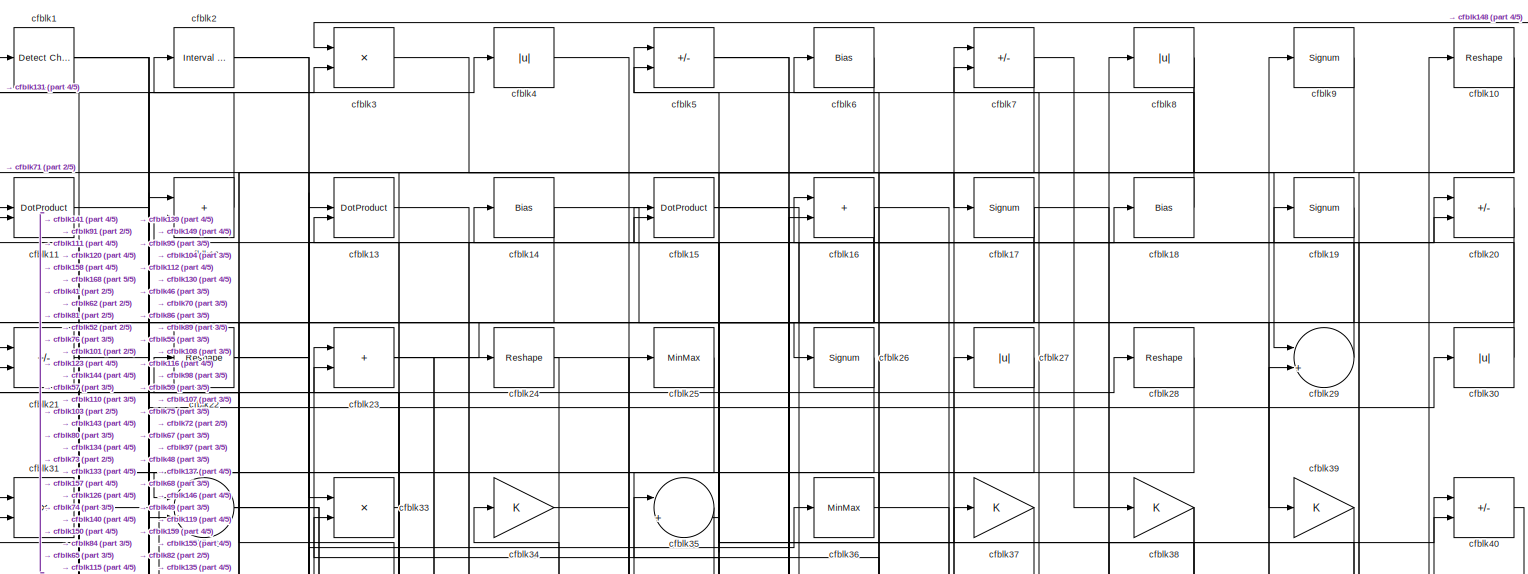
[diagram: root canvas - part 1/5, full width, top band]
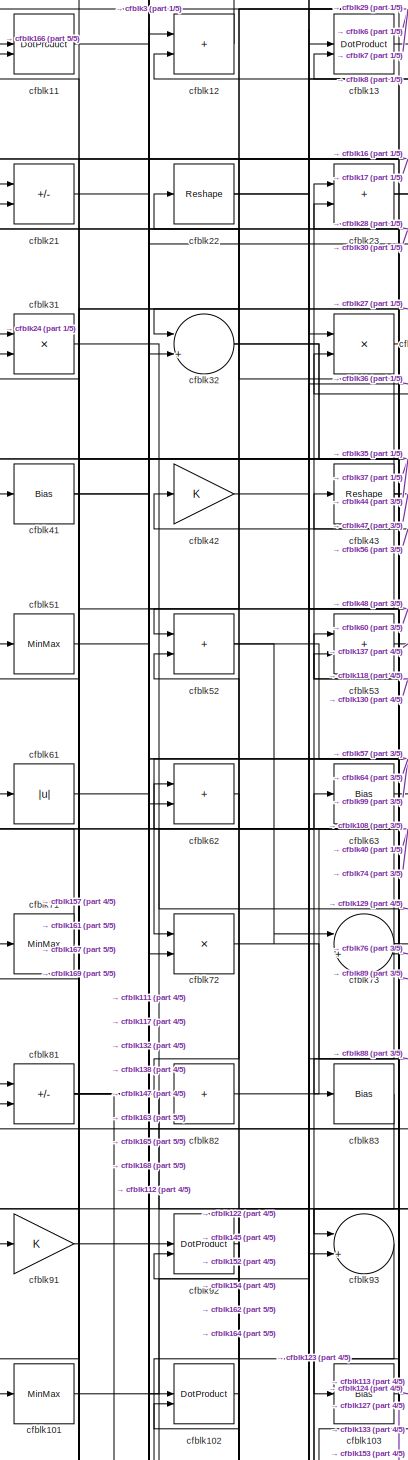
[diagram: root canvas - part 2/5, middle left region]
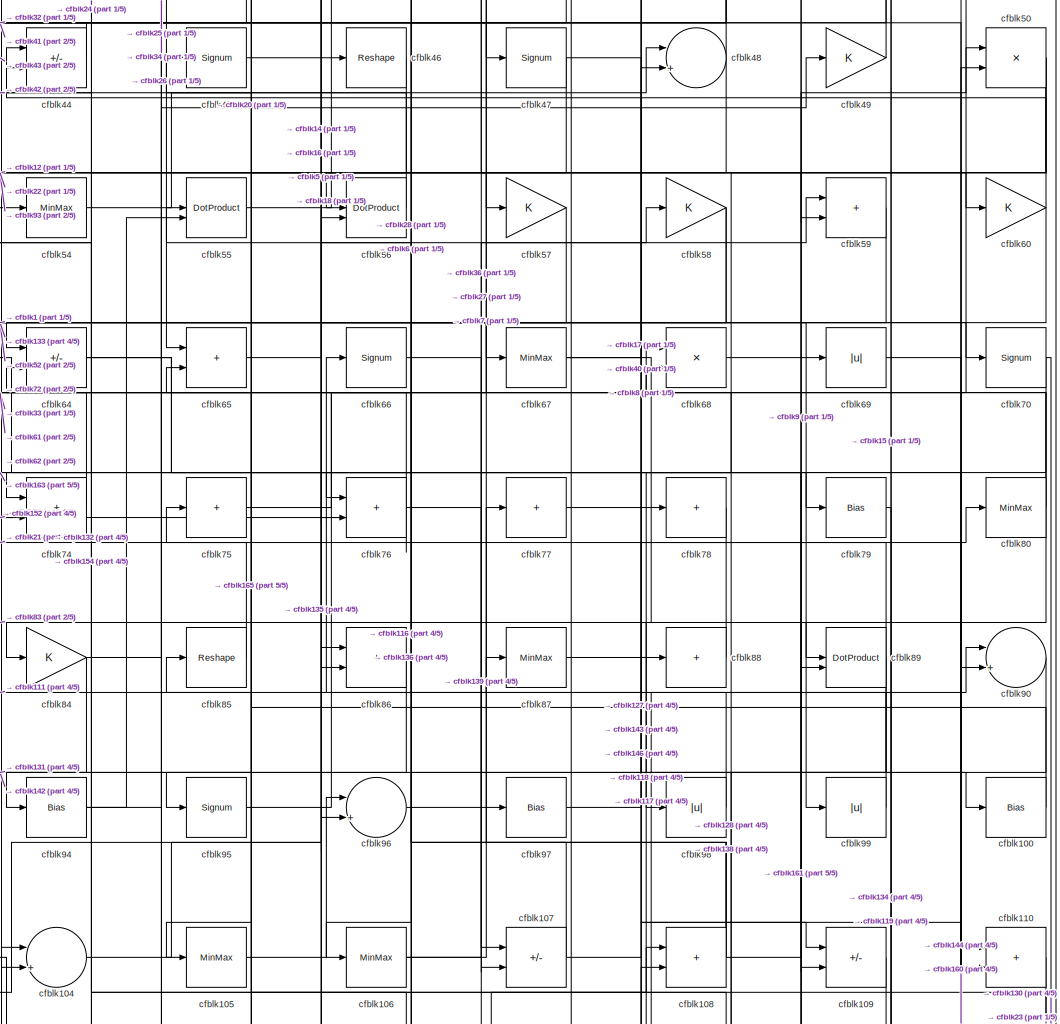
[diagram: root canvas - part 3/5, central region]
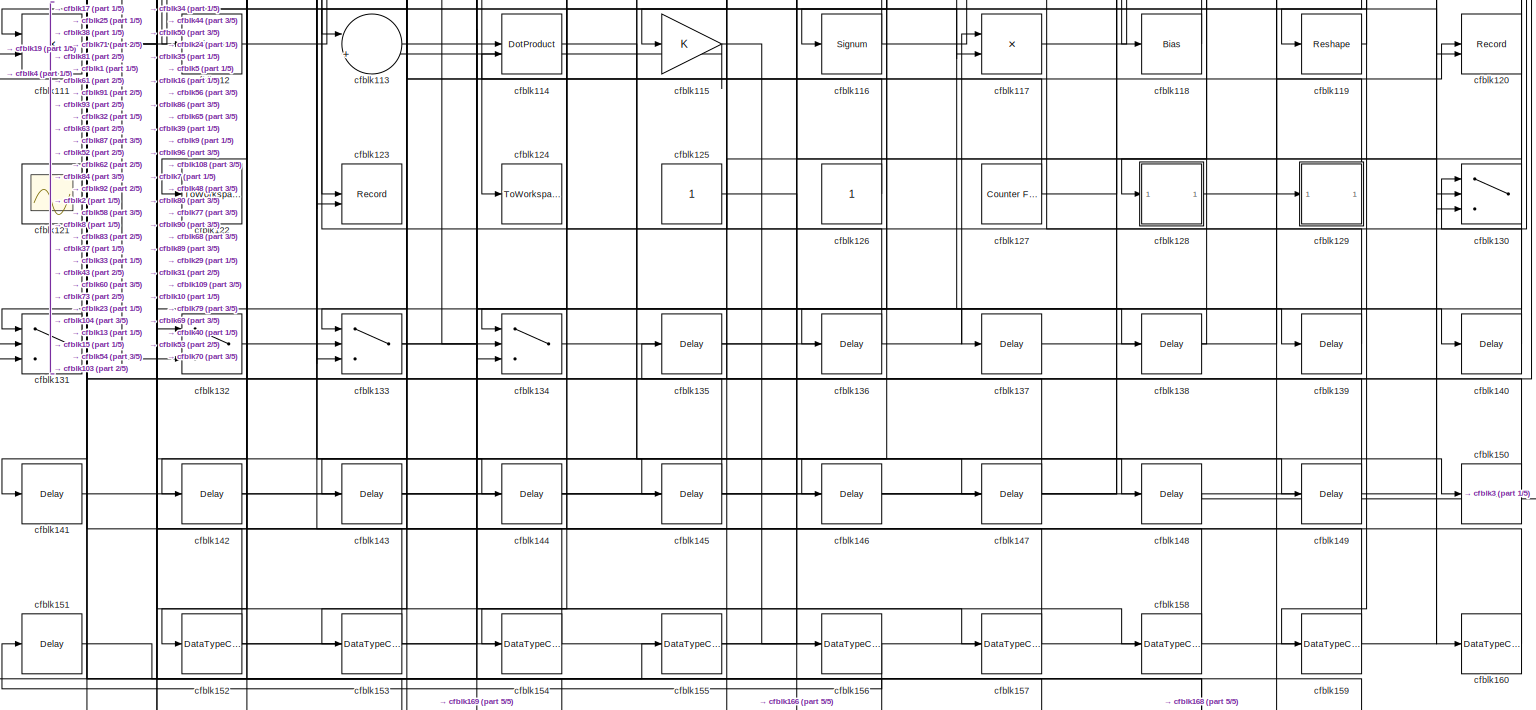
[diagram: root canvas - part 4/5, full width, bottom band]
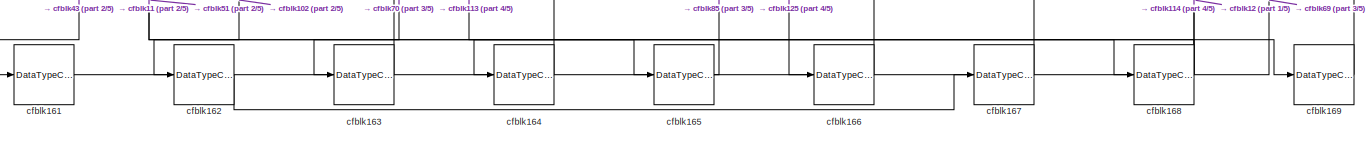
[diagram: root canvas - part 5/5, full width, bottom band]
MODEL slx_35095c413381
KIND model
CONFIG AbsTol = auto
CONFIG EnableMultiTasking = off
CONFIG FixedStep = auto
CONFIG MaxStep = auto
CONFIG MinStep = auto
CONFIG RelTol = 1e-3
CONFIG SampleTimeConstraint = Unconstrained
CONFIG SolverName = VariableStepAuto
CONFIG StartTime = 0.0
CONFIG StopTime = 10.0
BLOCK [Reference] cfblk1  REF=simulink/Logic and Bit
Operations/Detect
Change
  LibrarySourceBlock = hdlsllib/Logic and Bit\nOperations/Detect\nChange
  SourceBlock = simulink/Logic and Bit\nOperations/Detect\nChange
  SourceType = Detect Change
BLOCK [Reshape] cfblk10
BLOCK [Bias] cfblk100
  Bias = 0.0
  SaturateOnIntegerOverflow = off
BLOCK [MinMax] cfblk101
BLOCK [DotProduct] cfblk102
  OutDataTypeStr = Inherit: Inherit via internal rule
BLOCK [Bias] cfblk103
  Bias = 0.0
  SaturateOnIntegerOverflow = off
BLOCK [Sum] cfblk104
  Inputs = |++
BLOCK [MinMax] cfblk105
BLOCK [MinMax] cfblk106
BLOCK [Sum] cfblk107
  IconShape = rectangular
  Inputs = +-
BLOCK [Sum] cfblk108
  IconShape = rectangular
BLOCK [Sum] cfblk109
  IconShape = rectangular
  Inputs = +-
BLOCK [DotProduct] cfblk11
  OutDataTypeStr = Inherit: Inherit via internal rule
BLOCK [Sum] cfblk110
  IconShape = rectangular
BLOCK [Product] cfblk111
  Inputs = */
  RndMeth = Zero
  SaturateOnIntegerOverflow = on
BLOCK [Signum] cfblk112
BLOCK [Sum] cfblk113
  Inputs = |++
BLOCK [DotProduct] cfblk114
  OutDataTypeStr = Inherit: Inherit via internal rule
BLOCK [Gain] cfblk115
BLOCK [Signum] cfblk116
BLOCK [Product] cfblk117
  Inputs = */
  RndMeth = Zero
  SaturateOnIntegerOverflow = on
BLOCK [Bias] cfblk118
  Bias = 0.0
  SaturateOnIntegerOverflow = off
BLOCK [Reshape] cfblk119
BLOCK [Sum] cfblk12
  IconShape = rectangular
BLOCK [Record] cfblk120
  CompatibilityTag = XY
  FileSettingsInternal = {"entries":[{"content":{"excelSettings":{"content":{},"type":"Streamout.ExcelSettings"}},"type":"Streamout.FileSettingStorage","uuid":""}],"packageUris":["http:\/\/schema.mathworks.com\/mf0\/streamout_blocks\/R2020a"],"version":"1.0"}
  Layout = [1 1]
  SignalsInternal = {"entries":[{"content":{},"type":"RecordBlkView.InputSignals","uuid":""}],"packageUris":["http:\/\/schema.mathworks.com\/mf0\/streamout_blocks\/R2020a"],"version":"1.0"}
  VisualizationBindings = {"xyplotplugin":{"info":[{"series":[{"bindingParametersList":[{"parameter":"X-Axis","signalID":755,"signalName":"cfblk128"},{"parameter":"Y-Axis","signalID":760,"signalName":"cfblk1"}],"seriesID":12178}],"subplotID":1}]}}
  st = -1
BLOCK [Scope] cfblk121
  Floating = on
  NumInputPorts = 1
  ScopeSpecificationString = Simulink.scopes.TimeScopeBlockCfg('CurrentConfiguration', extmgr.ConfigurationSet(extmgr.Configuration('Core','General UI',true,'FigureColor',[0.156862745098039 0.156862745098039 0.156862745098039]),extmgr.Configuration('Core','Source UI',true),extmgr.Configuration('Sources','WiredSimulink',true,'DataLoggingVariableName','ScopeData1','DataLoggingSaveFormat','StructureWithTime','DataLoggingLimitDat...<+2713ch>
BLOCK [ToWorkspace] cfblk122
  MaxDataPoints = inf
  SampleTime = -1
  SaveFormat = Timeseries
  VariableName = simout
BLOCK [Record] cfblk123
  CompatibilityTag = XY
  FileSettingsInternal = {"entries":[{"content":{"excelSettings":{"content":{},"type":"Streamout.ExcelSettings"}},"type":"Streamout.FileSettingStorage","uuid":""}],"packageUris":["http:\/\/schema.mathworks.com\/mf0\/streamout_blocks\/R2020a"],"version":"1.0"}
  Layout = [1 1]
  SignalsInternal = {"entries":[{"content":{},"type":"RecordBlkView.InputSignals","uuid":""}],"packageUris":["http:\/\/schema.mathworks.com\/mf0\/streamout_blocks\/R2020a"],"version":"1.0"}
  VisualizationBindings = {"xyplotplugin":{"info":[{"series":[{"bindingParametersList":[{"parameter":"X-Axis","signalID":764,"signalName":"cfblk83"},{"parameter":"Y-Axis","signalID":768,"signalName":"cfblk8"}],"seriesID":30120}],"subplotID":1}]}}
  st = -1
BLOCK [ToWorkspace] cfblk124
  MaxDataPoints = inf
  SampleTime = -1
  SaveFormat = Timeseries
  VariableName = simout
BLOCK [Constant] cfblk125
  SampleTime = -1
BLOCK [Constant] cfblk126
  SampleTime = -1
BLOCK [Reference] cfblk127  REF=hdlsllib/Sources/Counter
Free-Running
  SourceBlock = hdlsllib/Sources/Counter\nFree-Running
  SourceType = Counter Free-Running
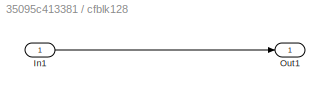
BLOCK [SubSystem] cfblk128
  LibrarySourceBlock = hdlsllib/Ports &\nSubsystems/Subsystem
BLOCK [Inport] cfblk128/In1
BLOCK [Outport] cfblk128/Out1
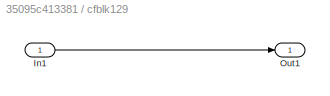
BLOCK [SubSystem] cfblk129
  LibrarySourceBlock = hdlsllib/Ports &\nSubsystems/Subsystem
BLOCK [Inport] cfblk129/In1
BLOCK [Outport] cfblk129/Out1
BLOCK [DotProduct] cfblk13
  OutDataTypeStr = Inherit: Inherit via internal rule
BLOCK [Switch] cfblk130
  InputSameDT = off
  SaturateOnIntegerOverflow = off
BLOCK [Switch] cfblk131
  InputSameDT = off
  SaturateOnIntegerOverflow = off
BLOCK [Switch] cfblk132
  InputSameDT = off
  SaturateOnIntegerOverflow = off
BLOCK [Switch] cfblk133
  InputSameDT = off
  SaturateOnIntegerOverflow = off
BLOCK [Switch] cfblk134
  InputSameDT = off
  SaturateOnIntegerOverflow = off
BLOCK [Delay] cfblk135
  InputPortMap = u0
  SampleTime = 1
BLOCK [Delay] cfblk136
  InputPortMap = u0
  SampleTime = 1
BLOCK [Delay] cfblk137
  InputPortMap = u0
  SampleTime = 1
BLOCK [Delay] cfblk138
  InputPortMap = u0
  SampleTime = 1
BLOCK [Delay] cfblk139
  InputPortMap = u0
  SampleTime = 1
BLOCK [Bias] cfblk14
  Bias = 0.0
  SaturateOnIntegerOverflow = off
BLOCK [Delay] cfblk140
  InputPortMap = u0
  SampleTime = 1
BLOCK [Delay] cfblk141
  InputPortMap = u0
  SampleTime = 1
BLOCK [Delay] cfblk142
  InputPortMap = u0
  SampleTime = 1
BLOCK [Delay] cfblk143
  InputPortMap = u0
  SampleTime = 1
BLOCK [Delay] cfblk144
  InputPortMap = u0
  SampleTime = 1
BLOCK [Delay] cfblk145
  InputPortMap = u0
  SampleTime = 1
BLOCK [Delay] cfblk146
  InputPortMap = u0
  SampleTime = 1
BLOCK [Delay] cfblk147
  InputPortMap = u0
  SampleTime = 1
BLOCK [Delay] cfblk148
  InputPortMap = u0
  SampleTime = 1
BLOCK [Delay] cfblk149
  InputPortMap = u0
  SampleTime = 1
BLOCK [DotProduct] cfblk15
  OutDataTypeStr = Inherit: Inherit via internal rule
BLOCK [Delay] cfblk150
  InputPortMap = u0
  SampleTime = 1
BLOCK [Delay] cfblk151
  InputPortMap = u0
  SampleTime = 1
BLOCK [DataTypeConversion] cfblk152
  RndMeth = Floor
  SaturateOnIntegerOverflow = off
BLOCK [DataTypeConversion] cfblk153
  OutDataTypeStr = uint8
  RndMeth = Floor
  SaturateOnIntegerOverflow = off
BLOCK [DataTypeConversion] cfblk154
  OutDataTypeStr = uint8
  RndMeth = Floor
  SaturateOnIntegerOverflow = off
BLOCK [DataTypeConversion] cfblk155
  OutDataTypeStr = uint8
  RndMeth = Floor
  SaturateOnIntegerOverflow = off
BLOCK [DataTypeConversion] cfblk156
  OutDataTypeStr = uint8
  RndMeth = Floor
  SaturateOnIntegerOverflow = off
BLOCK [DataTypeConversion] cfblk157
  OutDataTypeStr = uint8
  RndMeth = Floor
  SaturateOnIntegerOverflow = off
BLOCK [DataTypeConversion] cfblk158
  OutDataTypeStr = uint8
  RndMeth = Floor
  SaturateOnIntegerOverflow = off
BLOCK [DataTypeConversion] cfblk159
  OutDataTypeStr = uint8
  RndMeth = Floor
  SaturateOnIntegerOverflow = off
BLOCK [Sum] cfblk16
  IconShape = rectangular
BLOCK [DataTypeConversion] cfblk160
  OutDataTypeStr = uint8
  RndMeth = Floor
  SaturateOnIntegerOverflow = off
BLOCK [DataTypeConversion] cfblk161
  OutDataTypeStr = uint8
  RndMeth = Floor
  SaturateOnIntegerOverflow = off
BLOCK [DataTypeConversion] cfblk162
  OutDataTypeStr = uint8
  RndMeth = Floor
  SaturateOnIntegerOverflow = off
BLOCK [DataTypeConversion] cfblk163
  OutDataTypeStr = uint8
  RndMeth = Floor
  SaturateOnIntegerOverflow = off
BLOCK [DataTypeConversion] cfblk164
  OutDataTypeStr = uint8
  RndMeth = Floor
  SaturateOnIntegerOverflow = off
BLOCK [DataTypeConversion] cfblk165
  OutDataTypeStr = uint8
  RndMeth = Floor
  SaturateOnIntegerOverflow = off
BLOCK [DataTypeConversion] cfblk166
  OutDataTypeStr = uint8
  RndMeth = Floor
  SaturateOnIntegerOverflow = off
BLOCK [DataTypeConversion] cfblk167
  OutDataTypeStr = uint8
  RndMeth = Floor
  SaturateOnIntegerOverflow = off
BLOCK [DataTypeConversion] cfblk168
  RndMeth = Floor
  SaturateOnIntegerOverflow = off
BLOCK [DataTypeConversion] cfblk169
  OutDataTypeStr = uint8
  RndMeth = Floor
  SaturateOnIntegerOverflow = off
BLOCK [Signum] cfblk17
BLOCK [Bias] cfblk18
  Bias = 0.0
  SaturateOnIntegerOverflow = off
BLOCK [Signum] cfblk19
BLOCK [Reference] cfblk2  REF=hdlsllib/Logic and Bit
Operations/Interval Test
  SourceBlock = hdlsllib/Logic and Bit\nOperations/Interval Test
  SourceType = Interval Test
BLOCK [Sum] cfblk20
  IconShape = rectangular
  Inputs = +-
BLOCK [Sum] cfblk21
  IconShape = rectangular
  Inputs = +-
BLOCK [Reshape] cfblk22
BLOCK [Sum] cfblk23
  IconShape = rectangular
BLOCK [Reshape] cfblk24
BLOCK [MinMax] cfblk25
BLOCK [Signum] cfblk26
BLOCK [Abs] cfblk27
  SaturateOnIntegerOverflow = off
BLOCK [Reshape] cfblk28
BLOCK [Sum] cfblk29
  Inputs = |++
BLOCK [Product] cfblk3
  Inputs = */
  RndMeth = Zero
  SaturateOnIntegerOverflow = on
BLOCK [Abs] cfblk30
  SaturateOnIntegerOverflow = off
BLOCK [Product] cfblk31
  Inputs = */
  RndMeth = Zero
  SaturateOnIntegerOverflow = on
BLOCK [Sum] cfblk32
  Inputs = |++
BLOCK [Product] cfblk33
  Inputs = */
  RndMeth = Zero
  SaturateOnIntegerOverflow = on
BLOCK [Gain] cfblk34
BLOCK [Sum] cfblk35
  Inputs = |++
BLOCK [MinMax] cfblk36
BLOCK [Gain] cfblk37
BLOCK [Gain] cfblk38
BLOCK [Gain] cfblk39
BLOCK [Abs] cfblk4
  SaturateOnIntegerOverflow = off
BLOCK [Sum] cfblk40
  IconShape = rectangular
  Inputs = +-
BLOCK [Bias] cfblk41
  Bias = 0.0
  SaturateOnIntegerOverflow = off
BLOCK [Gain] cfblk42
BLOCK [Reshape] cfblk43
BLOCK [Sum] cfblk44
  IconShape = rectangular
  Inputs = +-
BLOCK [Signum] cfblk45
BLOCK [Reshape] cfblk46
BLOCK [Signum] cfblk47
BLOCK [Sum] cfblk48
  Inputs = |++
BLOCK [Gain] cfblk49
BLOCK [Sum] cfblk5
  IconShape = rectangular
  Inputs = +-
BLOCK [Product] cfblk50
  Inputs = */
  RndMeth = Zero
  SaturateOnIntegerOverflow = on
BLOCK [MinMax] cfblk51
BLOCK [Sum] cfblk52
  IconShape = rectangular
BLOCK [Sum] cfblk53
  IconShape = rectangular
BLOCK [MinMax] cfblk54
BLOCK [DotProduct] cfblk55
  OutDataTypeStr = Inherit: Inherit via internal rule
BLOCK [DotProduct] cfblk56
  OutDataTypeStr = Inherit: Inherit via internal rule
BLOCK [Gain] cfblk57
BLOCK [Gain] cfblk58
BLOCK [Sum] cfblk59
  IconShape = rectangular
BLOCK [Bias] cfblk6
  Bias = 0.0
  SaturateOnIntegerOverflow = off
BLOCK [Gain] cfblk60
BLOCK [Abs] cfblk61
  SaturateOnIntegerOverflow = off
BLOCK [Sum] cfblk62
  IconShape = rectangular
BLOCK [Bias] cfblk63
  Bias = 0.0
  SaturateOnIntegerOverflow = off
BLOCK [Sum] cfblk64
  IconShape = rectangular
  Inputs = +-
BLOCK [Sum] cfblk65
  IconShape = rectangular
BLOCK [Signum] cfblk66
BLOCK [MinMax] cfblk67
BLOCK [Product] cfblk68
  Inputs = */
  RndMeth = Zero
  SaturateOnIntegerOverflow = on
BLOCK [Abs] cfblk69
  SaturateOnIntegerOverflow = off
BLOCK [Sum] cfblk7
  IconShape = rectangular
  Inputs = +-
BLOCK [Signum] cfblk70
BLOCK [MinMax] cfblk71
BLOCK [Product] cfblk72
  Inputs = */
  RndMeth = Zero
  SaturateOnIntegerOverflow = on
BLOCK [Sum] cfblk73
  Inputs = |++
BLOCK [Sum] cfblk74
  IconShape = rectangular
BLOCK [Sum] cfblk75
  IconShape = rectangular
  Inputs = +
BLOCK [Sum] cfblk76
  IconShape = rectangular
BLOCK [Sum] cfblk77
  IconShape = rectangular
  Inputs = +
BLOCK [Sum] cfblk78
  IconShape = rectangular
  Inputs = +
BLOCK [Bias] cfblk79
  Bias = 0.0
  SaturateOnIntegerOverflow = off
BLOCK [Abs] cfblk8
  SaturateOnIntegerOverflow = off
BLOCK [MinMax] cfblk80
BLOCK [Sum] cfblk81
  IconShape = rectangular
  Inputs = +-
BLOCK [Sum] cfblk82
  IconShape = rectangular
  Inputs = +
BLOCK [Bias] cfblk83
  Bias = 0.0
  SaturateOnIntegerOverflow = off
BLOCK [Gain] cfblk84
BLOCK [Reshape] cfblk85
BLOCK [Sum] cfblk86
  IconShape = rectangular
BLOCK [MinMax] cfblk87
BLOCK [Sum] cfblk88
  IconShape = rectangular
  Inputs = +
BLOCK [DotProduct] cfblk89
  OutDataTypeStr = Inherit: Inherit via internal rule
BLOCK [Signum] cfblk9
BLOCK [Sum] cfblk90
  Inputs = |++
BLOCK [Gain] cfblk91
BLOCK [DotProduct] cfblk92
  OutDataTypeStr = Inherit: Inherit via internal rule
BLOCK [Sum] cfblk93
  Inputs = |++
BLOCK [Bias] cfblk94
  Bias = 0.0
  SaturateOnIntegerOverflow = off
BLOCK [Signum] cfblk95
BLOCK [Sum] cfblk96
  Inputs = |++
BLOCK [Bias] cfblk97
  Bias = 0.0
  SaturateOnIntegerOverflow = off
BLOCK [Abs] cfblk98
  SaturateOnIntegerOverflow = off
BLOCK [Abs] cfblk99
  SaturateOnIntegerOverflow = off
LINE cfblk100:1 -> cfblk45:1
LINE cfblk101:1 -> cfblk36:1
LINE cfblk102:1 -> cfblk162:1
LINE cfblk103:1 -> cfblk124:1
LINE cfblk104:1 -> cfblk20:2
LINE cfblk105:1 -> cfblk96:1
NET cfblk106:1 -> cfblk59:1, cfblk77:1
NET cfblk107:1 -> cfblk109:1, cfblk7:1
NET cfblk108:1 -> cfblk33:2, cfblk50:1, cfblk55:1, cfblk62:1
LINE cfblk109:1 -> cfblk134:1
NET cfblk10:1 -> cfblk115:1, cfblk159:1
LINE cfblk110:1 -> cfblk23:1
NET cfblk111:1 -> cfblk32:2, cfblk63:1, cfblk87:1
LINE cfblk112:1 -> cfblk37:1
LINE cfblk113:1 -> cfblk169:1
LINE cfblk114:1 -> cfblk149:1
NET cfblk115:1 -> cfblk113:2, cfblk156:1
NET cfblk116:1 -> cfblk108:1, cfblk65:2
LINE cfblk117:1 -> cfblk90:1
LINE cfblk118:1 -> cfblk53:2
LINE cfblk119:1 -> cfblk19:1
LINE cfblk11:1 -> cfblk165:1
LINE cfblk125:1 -> cfblk166:1
LINE cfblk126:1 -> cfblk34:1
NET cfblk127:1 -> cfblk43:1, cfblk80:1
LINE cfblk128/In1:1 -> cfblk128/Out1:1
LINE cfblk128:1 -> cfblk120:1
LINE cfblk129/In1:1 -> cfblk129/Out1:1
LINE cfblk129:1 -> cfblk81:1
LINE cfblk12:1 -> cfblk2:1
NET cfblk130:1 -> cfblk134:3, cfblk53:1
LINE cfblk131:1 -> cfblk4:1
LINE cfblk132:1 -> cfblk145:1
NET cfblk133:1 -> cfblk148:1, cfblk15:2
LINE cfblk134:1 -> cfblk117:1
LINE cfblk135:1 -> cfblk56:2
LINE cfblk136:1 -> cfblk44:2
LINE cfblk137:1 -> cfblk29:2
LINE cfblk138:1 -> cfblk68:2
LINE cfblk139:1 -> cfblk5:2
LINE cfblk13:1 -> cfblk157:1
LINE cfblk140:1 -> cfblk7:2
LINE cfblk141:1 -> cfblk16:2
LINE cfblk142:1 -> cfblk104:2
LINE cfblk143:1 -> cfblk48:2
LINE cfblk144:1 -> cfblk50:2
LINE cfblk145:1 -> cfblk52:2
LINE cfblk146:1 -> cfblk108:2
LINE cfblk147:1 -> cfblk31:2
LINE cfblk148:1 -> cfblk3:1
LINE cfblk149:1 -> cfblk35:1
NET cfblk14:1 -> cfblk32:1, cfblk46:1
LINE cfblk150:1 -> cfblk1:1
LINE cfblk151:1 -> cfblk155:1
NET cfblk152:1 -> cfblk132:1, cfblk54:1, cfblk86:1
LINE cfblk153:1 -> cfblk92:1
LINE cfblk154:1 -> cfblk92:2
LINE cfblk155:1 -> cfblk10:1
LINE cfblk156:1 -> cfblk151:1
LINE cfblk157:1 -> cfblk71:1
LINE cfblk158:1 -> cfblk13:1
LINE cfblk159:1 -> cfblk13:2
NET cfblk15:1 -> cfblk130:3, cfblk39:1
LINE cfblk160:1 -> cfblk114:2
LINE cfblk161:1 -> cfblk69:1
LINE cfblk162:1 -> cfblk167:1
LINE cfblk163:1 -> cfblk102:1
LINE cfblk164:1 -> cfblk102:2
LINE cfblk165:1 -> cfblk85:1
LINE cfblk166:1 -> cfblk11:1
LINE cfblk167:1 -> cfblk11:2
NET cfblk168:1 -> cfblk114:1, cfblk12:1, cfblk164:1
LINE cfblk169:1 -> cfblk51:1
NET cfblk16:1 -> cfblk35:2, cfblk59:2, cfblk81:2, cfblk86:2
NET cfblk17:1 -> cfblk110:2, cfblk111:1, cfblk62:2
LINE cfblk18:1 -> cfblk5:1
LINE cfblk19:1 -> cfblk111:2
NET cfblk1:1 -> cfblk120:2, cfblk158:1, cfblk67:1
LINE cfblk20:1 -> cfblk95:1
LINE cfblk21:1 -> cfblk64:1
NET cfblk22:1 -> cfblk20:1, cfblk57:1
NET cfblk23:1 -> cfblk134:2, cfblk26:1
NET cfblk24:1 -> cfblk150:1, cfblk74:1
LINE cfblk25:1 -> cfblk141:1
LINE cfblk26:1 -> cfblk65:1
LINE cfblk27:1 -> cfblk91:1
LINE cfblk28:1 -> cfblk76:1
LINE cfblk29:1 -> cfblk14:1
NET cfblk2:1 -> cfblk144:1, cfblk33:1
LINE cfblk30:1 -> cfblk16:1
LINE cfblk31:1 -> cfblk129:1
NET cfblk32:1 -> cfblk104:1, cfblk110:1
LINE cfblk33:1 -> cfblk143:1
LINE cfblk34:1 -> cfblk76:2
LINE cfblk35:1 -> cfblk101:1
LINE cfblk36:1 -> cfblk107:1
LINE cfblk37:1 -> cfblk72:2
NET cfblk38:1 -> cfblk131:1, cfblk131:3
LINE cfblk39:1 -> cfblk146:1
LINE cfblk3:1 -> cfblk17:1
LINE cfblk40:1 -> cfblk135:1
NET cfblk41:1 -> cfblk28:1, cfblk30:1
LINE cfblk42:1 -> cfblk60:1
NET cfblk43:1 -> cfblk153:1, cfblk161:1, cfblk21:2, cfblk47:1
LINE cfblk44:1 -> cfblk41:1
LINE cfblk45:1 -> cfblk79:1
LINE cfblk46:1 -> cfblk56:1
NET cfblk47:1 -> cfblk100:1, cfblk105:1
NET cfblk48:1 -> cfblk12:2, cfblk93:1
LINE cfblk49:1 -> cfblk15:1
LINE cfblk4:1 -> cfblk140:1
NET cfblk50:1 -> cfblk132:2, cfblk154:1, cfblk78:1
LINE cfblk51:1 -> cfblk168:1
NET cfblk52:1 -> cfblk73:1, cfblk99:1
LINE cfblk53:1 -> cfblk137:1
LINE cfblk54:1 -> cfblk48:1
LINE cfblk55:1 -> cfblk18:1
LINE cfblk56:1 -> cfblk42:1
LINE cfblk57:1 -> cfblk72:1
NET cfblk58:1 -> cfblk106:1, cfblk133:3
LINE cfblk59:1 -> cfblk74:2
NET cfblk5:1 -> cfblk70:1, cfblk89:1
NET cfblk60:1 -> cfblk133:1, cfblk44:1
LINE cfblk61:1 -> cfblk147:1
LINE cfblk62:1 -> cfblk122:1
LINE cfblk63:1 -> cfblk130:2
NET cfblk64:1 -> cfblk109:2, cfblk96:2
LINE cfblk65:1 -> cfblk58:1
LINE cfblk66:1 -> cfblk97:1
NET cfblk67:1 -> cfblk40:2, cfblk90:2
LINE cfblk68:1 -> cfblk9:1
LINE cfblk69:1 -> cfblk160:1
LINE cfblk6:1 -> cfblk103:1
NET cfblk70:1 -> cfblk130:1, cfblk163:1
LINE cfblk71:1 -> cfblk29:1
LINE cfblk72:1 -> cfblk88:1
NET cfblk73:1 -> cfblk113:1, cfblk133:2, cfblk24:1, cfblk31:1
LINE cfblk74:1 -> cfblk61:1
LINE cfblk75:1 -> cfblk27:1
NET cfblk76:1 -> cfblk22:1, cfblk73:2, cfblk89:2
LINE cfblk77:1 -> cfblk118:1
LINE cfblk78:1 -> cfblk84:1
LINE cfblk79:1 -> cfblk119:1
NET cfblk7:1 -> cfblk38:1, cfblk52:1
NET cfblk80:1 -> cfblk107:2, cfblk23:2, cfblk64:2
NET cfblk81:1 -> cfblk117:2, cfblk132:3, cfblk3:2, cfblk93:2
LINE cfblk82:1 -> cfblk40:1
LINE cfblk83:1 -> cfblk123:1
NET cfblk84:1 -> cfblk142:1, cfblk25:1
LINE cfblk85:1 -> cfblk75:1
LINE cfblk86:1 -> cfblk94:1
LINE cfblk87:1 -> cfblk98:1
LINE cfblk88:1 -> cfblk83:1
NET cfblk89:1 -> cfblk128:1, cfblk131:2, cfblk21:1
NET cfblk8:1 -> cfblk123:2, cfblk82:1
LINE cfblk90:1 -> cfblk136:1
LINE cfblk91:1 -> cfblk138:1
LINE cfblk92:1 -> cfblk152:1
LINE cfblk93:1 -> cfblk112:1
NET cfblk94:1 -> cfblk49:1, cfblk55:2
LINE cfblk95:1 -> cfblk68:1
LINE cfblk96:1 -> cfblk139:1
LINE cfblk97:1 -> cfblk8:1
LINE cfblk98:1 -> cfblk6:1
LINE cfblk99:1 -> cfblk66:1
LINE cfblk9:1 -> cfblk116:1
note: NET lines group one-source signal fan-out (src -> all destinations, sorted); 1:1 wires keep LINE
